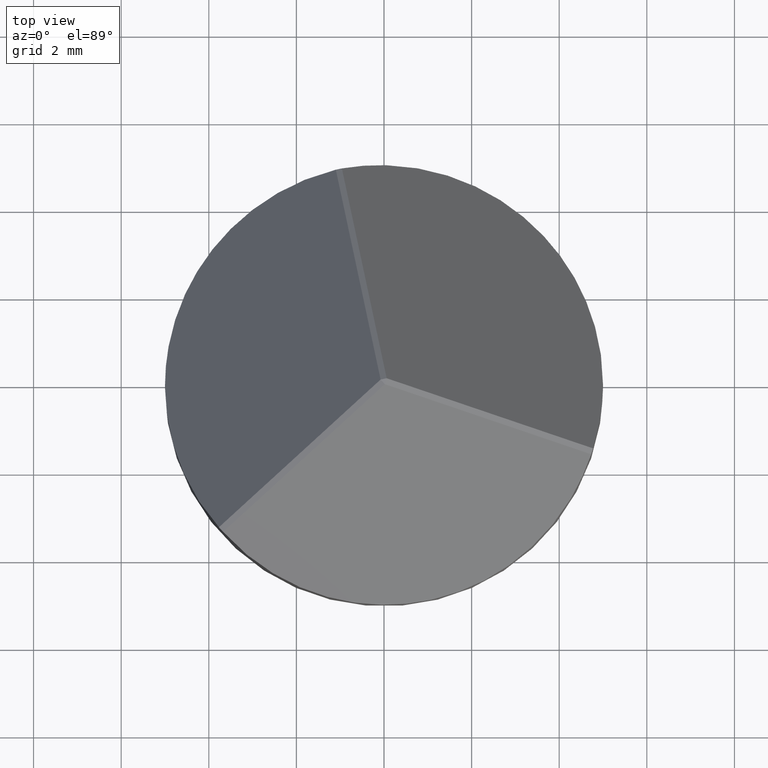
[diagram: clean part render]
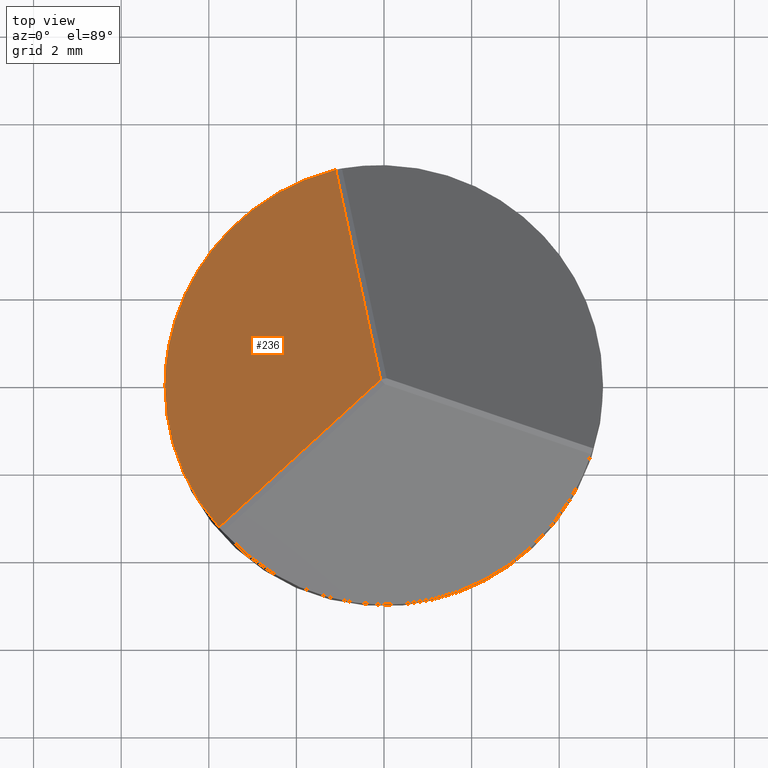
[diagram: same view with one face highlighted and labeled with its STEP entity id]
A machine part, top view. The second image highlights one B-rep face of the part: STEP entity #236.
In plain terms, the highlighted planar face has unit normal (-0.7761, 0.2537, 0.5774).
Its self-contained STEP definition (entity closure, byte-faithful):
#3 = CARTESIAN_POINT ( 'NONE',  ( -5.000000000000000000, 0.000000000000000000, 1.814394517940242313 ) ) ;
#16 = CARTESIAN_POINT ( 'NONE',  ( -5.000000000000000000, -1.221581211786098908, 2.351128184227231799 ) ) ;
#18 = EDGE_CURVE ( 'NONE', #225, #44, #185, .T. ) ;
#21 = VECTOR ( 'NONE', #328, 1000.000000000000114 ) ;
#25 = EDGE_CURVE ( 'NONE', #79, #358, #42, .T. ) ;
#31 = ORIENTED_EDGE ( 'NONE', *, *, #245, .T. ) ;
#42 = LINE ( 'NONE', #46, #224 ) ;
#44 = VERTEX_POINT ( 'NONE', #343 ) ;
#46 = CARTESIAN_POINT ( 'NONE',  ( -0.8904358107890046892, 3.882696643678281490, 5.632620910369530165 ) ) ;
#62 = EDGE_CURVE ( 'NONE', #358, #225, #197, .T. ) ;
#70 = CARTESIAN_POINT ( 'NONE',  ( -3.011740764090020228, -2.607225868597601526, 5.632620910369531053 ) ) ;
#79 = VERTEX_POINT ( 'NONE', #82 ) ;
#82 = CARTESIAN_POINT ( 'NONE',  ( -0.07760903269836634533, 0.02536739462952527363, 8.420063852094820334 ) ) ;
#94 = DIRECTION ( 'NONE',  ( 0.5968741507396998491, 0.000000000000000000, 0.8023348728422329268 ) ) ;
#111 = CARTESIAN_POINT ( 'NONE',  ( -1.100060438227439485, 4.877485728553889288, 4.913751030691609678 ) ) ;
#124 = CARTESIAN_POINT ( 'NONE',  ( -3.824567542180657309, 1.250103380451152990, 2.845177968644243105 ) ) ;
#129 = CARTESIAN_POINT ( 'NONE',  ( -5.000000000000000000, 0.000000000000000000, 1.814394517940242313 ) ) ;
#156 = CARTESIAN_POINT ( 'NONE',  ( -5.000000000000000000, 0.000000000000000000, 1.814394517940242313 ) ) ;
#159 = ORIENTED_EDGE ( 'NONE', *, *, #25, .T. ) ;
#185 =( BOUNDED_CURVE ( )  B_SPLINE_CURVE ( 3, ( #129, #16, #255, #223 ),
 .UNSPECIFIED., .F., .T. ) 
 B_SPLINE_CURVE_WITH_KNOTS ( ( 4, 4 ),
 ( 0.3159145209226034701, 1.033054944125912478 ),
 .UNSPECIFIED. ) 
 CURVE ( )  GEOMETRIC_REPRESENTATION_ITEM ( )  RATIONAL_B_SPLINE_CURVE ( ( 1.000000000000000000, 0.9575996963291497632, 0.9575996963291497632, 1.000000000000000000 ) ) 
 REPRESENTATION_ITEM ( '' )  );
#197 =( BOUNDED_CURVE ( )  B_SPLINE_CURVE ( 3, ( #321, #237, #346, #3 ),
 .UNSPECIFIED., .F., .F. ) 
 B_SPLINE_CURVE_WITH_KNOTS ( ( 4, 4 ),
 ( 5.250130363053667537, 6.599099828102189313 ),
 .UNSPECIFIED. ) 
 CURVE ( )  GEOMETRIC_REPRESENTATION_ITEM ( )  RATIONAL_B_SPLINE_CURVE ( ( 1.000000000000000000, 0.8540192244947443223, 0.8540192244947443223, 1.000000000000000000 ) ) 
 REPRESENTATION_ITEM ( '' )  );
#219 = PLANE ( 'NONE',  #253 ) ;
#223 = CARTESIAN_POINT ( 'NONE',  ( -3.768441069280552558, -3.286160663655941061, 4.913751030691575039 ) ) ;
#224 = VECTOR ( 'NONE', #289, 999.9999999999998863 ) ;
#225 = VERTEX_POINT ( 'NONE', #156 ) ;
#236 = ADVANCED_FACE ( 'NONE', ( #349 ), #219, .T. ) ;
#237 = CARTESIAN_POINT ( 'NONE',  ( -3.477809612900359504, 4.341211929991462881, 1.953140228378772880 ) ) ;
#245 = EDGE_CURVE ( 'NONE', #44, #79, #249, .T. ) ;
#249 = LINE ( 'NONE', #70, #21 ) ;
#253 = AXIS2_PLACEMENT_3D ( 'NONE', #124, #331, #94 ) ;
#255 = CARTESIAN_POINT ( 'NONE',  ( -4.571303494407077395, -2.365469302064693746, 3.429991138699881148 ) ) ;
#279 = EDGE_LOOP ( 'NONE', ( #281, #312, #31, #159 ) ) ;
#281 = ORIENTED_EDGE ( 'NONE', *, *, #62, .T. ) ;
#289 = DIRECTION ( 'NONE',  ( -0.1683570817218959514, 0.7989509119468812814, -0.5773502691896260641 ) ) ;
#312 = ORIENTED_EDGE ( 'NONE', *, *, #18, .T. ) ;
#321 = CARTESIAN_POINT ( 'NONE',  ( -1.100060438227439485, 4.877485728553889288, 4.913751030691609678 ) ) ;
#328 = DIRECTION ( 'NONE',  ( 0.6077332452617952852, 0.5452769656516155417, 0.5773502691896259531 ) ) ;
#331 = DIRECTION ( 'NONE',  ( -0.7760903269836918472, 0.2536739462952660729, 0.5773502691896253980 ) ) ;
#343 = CARTESIAN_POINT ( 'NONE',  ( -3.768441069280552558, -3.286160663655941061, 4.913751030691575039 ) ) ;
#346 = CARTESIAN_POINT ( 'NONE',  ( -4.999999999999998224, 2.437474251080893772, 0.7434264327730533140 ) ) ;
#349 = FACE_OUTER_BOUND ( 'NONE', #279, .T. ) ;
#358 = VERTEX_POINT ( 'NONE', #111 ) ;